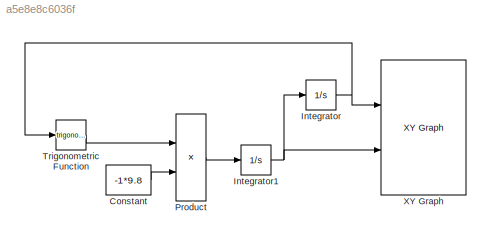
MODEL slx_a5e8e8c6036f
KIND model
BLOCK [Constant] Constant
  Value = -1*9.8
BLOCK [Integrator] Integrator
  InitialCondition = pi-1
  Ports = [1, 1]
BLOCK [Integrator] Integrator1
  InitialCondition = 0.5
  Ports = [1, 1]
BLOCK [Product] Product
  InputSameDT = off
  OutDataTypeStr = Inherit: Inherit via internal rule
  Ports = [2, 1]
  RndMeth = Floor
  SaturateOnIntegerOverflow = off
BLOCK [Trigonometry] Trigonometric Function
  Ports = [1, 1]
BLOCK [Reference] XY Graph  REF=simulink/Sinks/XY Graph
  Ports = [2]
  SourceBlock = simulink/Sinks/XY Graph
  SourceType = XY scope.
  st = -1
  xmax = 15
  xmin = -15
  ymax = 10
  ymin = -10
LINE Constant:1 -> Product:2
NET Integrator1:1 -> Integrator:1, XY Graph:2
NET Integrator:1 -> Trigonometric Function:1, XY Graph:1
LINE Product:1 -> Integrator1:1
LINE Trigonometric Function:1 -> Product:1
note: NET lines group one-source signal fan-out (src -> all destinations, sorted); 1:1 wires keep LINE
